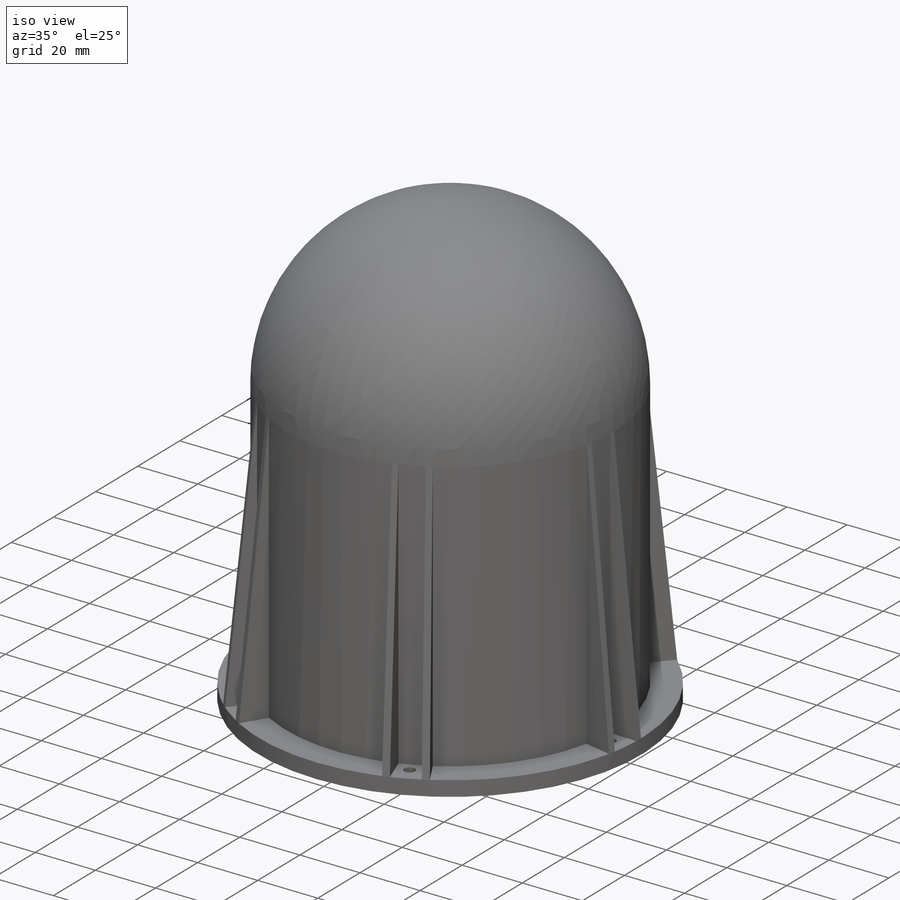
[diagram: iso view]
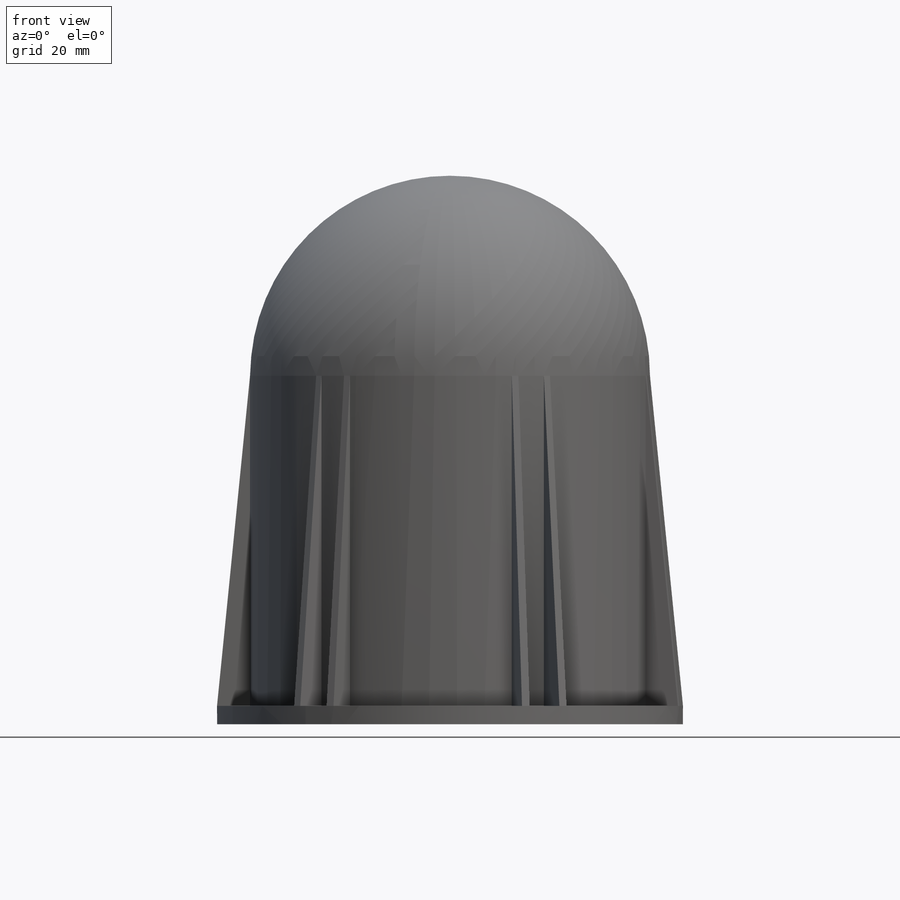
[diagram: front view]
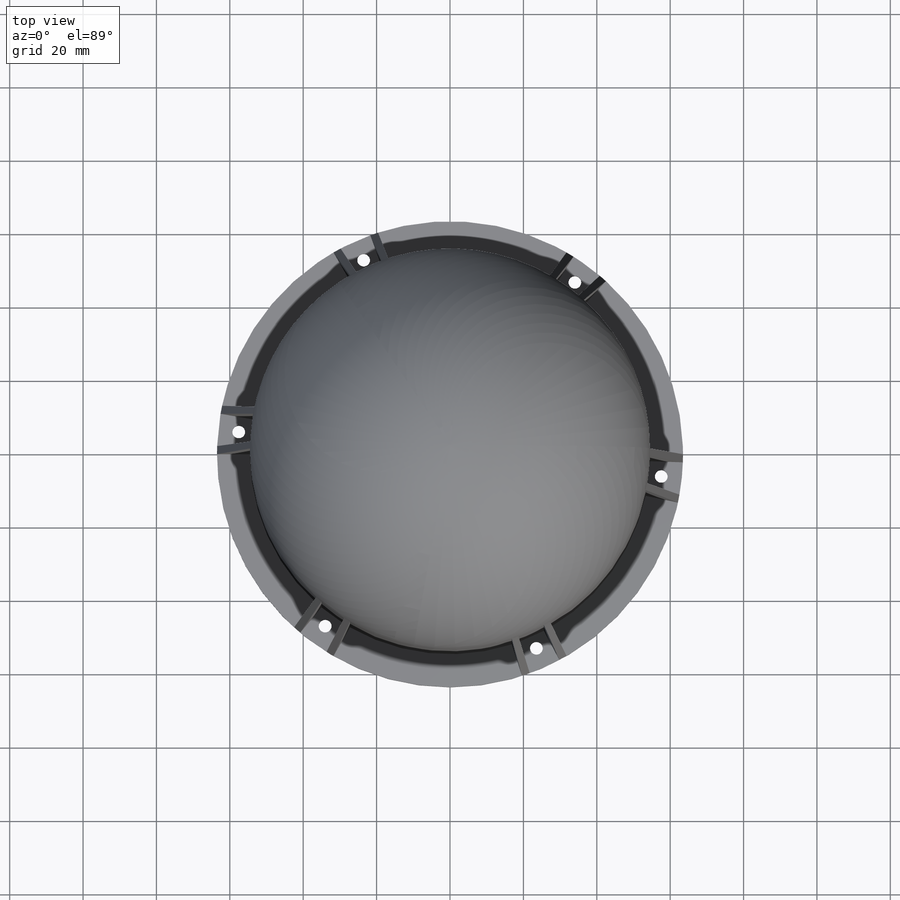
[diagram: top view]
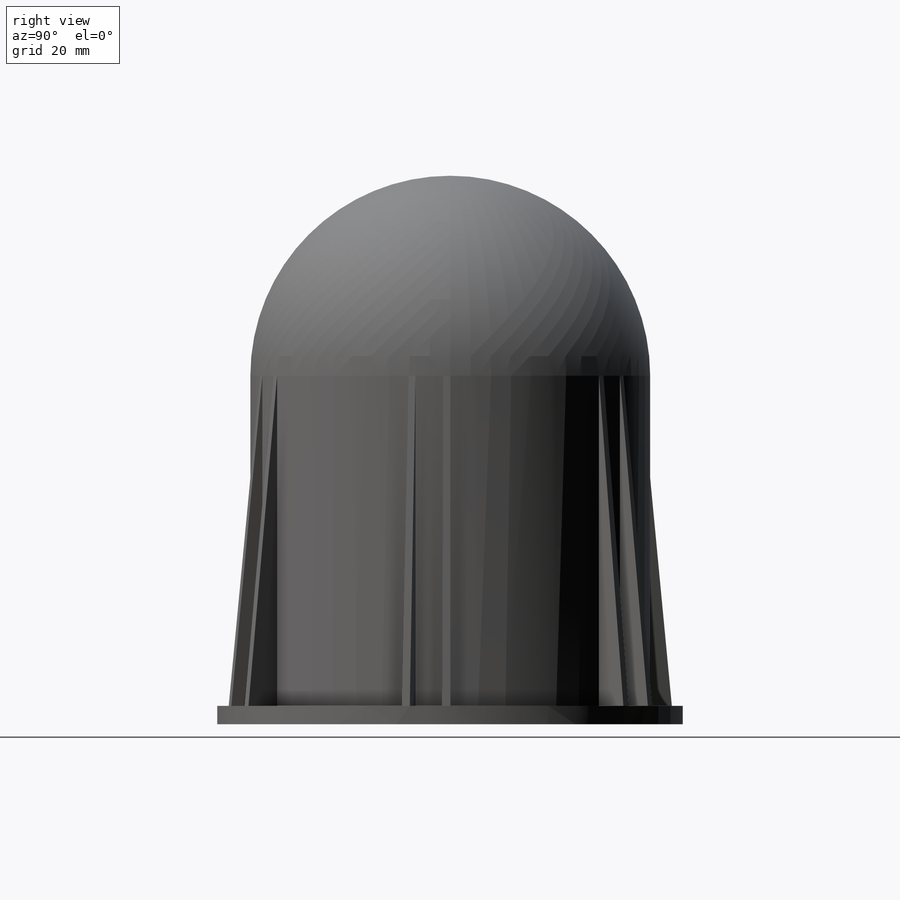
[diagram: right view]
SOLIDWORKS PART (.sldprt)
format: sldprt  version: not decoded by parser v0  size: 402,944 bytes
history: native  units: mm
features: sketch x6, pattern_circular x4, revolve x2, cut_extrude x2, extrude x2, material x1, plane x1 (+12 scaffold rows collapsed)
feature tree (30):
  scaffold x12  (default folders/planes/origin — collapsed)
  material  "Polyester Resin"
  sketch  "Sketch1"  dims[c1.D1=50.0mm c1.D2=9.0mm c1.D3=5.0mm c1.D4=4.0mm c1.D5=4.0mm c1.D6=70.0mm c1.D7=12.0mm c2.D1=50.5mm]
  revolve  "Revolve1"  Angle=360deg
  sketch  "Sketch2"  dims[D1=50.0mm]
  revolve  "Revolve2"  Angle=3deg
  pattern_circular  "CirPattern1"  Count=2 Angle=17deg
  sketch  "Sketch3"  dims[D2=4.0mm D3=12.0mm D1=7.0mm]
  cut_extrude  "Cut-Extrude1"  [1 undecoded]
  pattern_circular  "CirPattern2"  Count=6 Angle=360deg
  sketch  "Sketch4"  dims[c1.D2=2.5mm c1.D1=4.0mm c1.D3=4.0mm c2.D1=7.0mm c2.D3=3.0mm c2.D4=6.0mm c2.D5=~1.76203mm c3.D4=1.0mm c3.D5=8.0mm c3.D6=42.5mm]
  extrude  "Boss-Extrude1"  [1 undecoded]
  pattern_circular  "CirPattern3"  Count=4 Angle=360deg
  plane  "Plane1"  Offset=66mm
  sketch  "Sketch5"  dims[c1.D2=30.0mm c1.D1=3.0mm c2.D2=30.0mm]
  extrude  "Boss-Extrude2"  [1 undecoded]
  sketch  "Sketch6"  dims[D2=6.0mm D1=5.0mm]
  cut_extrude  "Cut-Extrude2"  [1 undecoded]
  pattern_circular  "CirPattern4"  Count=2 Angle=90deg
decode coverage: 12 of 16 modeling features carry decoded parameters
note: ~ marks probable driven/reference dimensions
note: 4 parameter values undecoded
summary: no parameter record found for 4 features
note: suppression state not decoded; provenance and decode notes live in map.json
